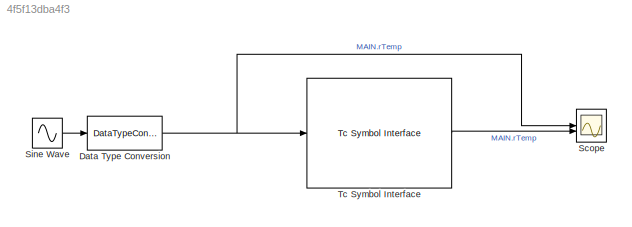
MODEL slx_4f5f13dba4f3
KIND model
CONFIG AbsTol = auto
CONFIG EnableMultiTasking = off
CONFIG FixedStep = 0.001
CONFIG MaxStep = auto
CONFIG MinStep = auto
CONFIG RelTol = 1e-3
CONFIG SampleTimeConstraint = Unconstrained
CONFIG SolverName = FixedStepAuto
CONFIG StartTime = 0.0
CONFIG StopTime = 4
BLOCK [DataTypeConversion] Data Type Conversion
  OutDataTypeStr = single
  RndMeth = Floor
  SaturateOnIntegerOverflow = off
BLOCK [Scope] Scope
  Floating = off
  NumInputPorts = 2
  ScopeSpecificationString = Simulink.scopes.TimeScopeBlockCfg('CurrentConfiguration', extmgr.ConfigurationSet(extmgr.Configuration('Core','General UI',true),extmgr.Configuration('Core','Source UI',true),extmgr.Configuration('Sources','WiredSimulink',true),extmgr.Configuration('Visuals','Time Domain',true,'SerializedDisplays',{struct('MinYLimReal','-1.25','MaxYLimReal','1.25','YLabelReal','','MinYLimMag','0.00000','MaxYLimMag...<+1397ch>
BLOCK [Sin] Sine Wave
  Frequency = 2
  SampleTime = 0
BLOCK [Reference] Tc Symbol Interface  REF=TcSimInterface/Tc Symbol Interface
  SourceBlock = TcSimInterface/Tc Symbol Interface
  SourceProductName = Beckhoff TwinCAT Interface
  SourceType = Tc Symbol Interface
NET Data Type Conversion:1 -> Scope:1, Tc Symbol Interface:1
LINE Sine Wave:1 -> Data Type Conversion:1
LINE Tc Symbol Interface:1 -> Scope:2
note: NET lines group one-source signal fan-out (src -> all destinations, sorted); 1:1 wires keep LINE
